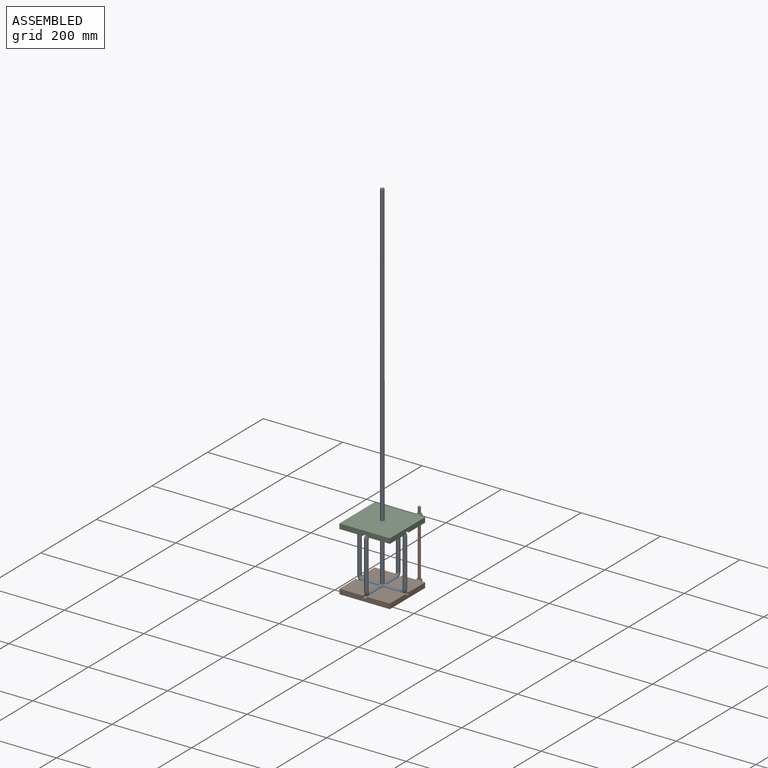
[diagram: assembled view]
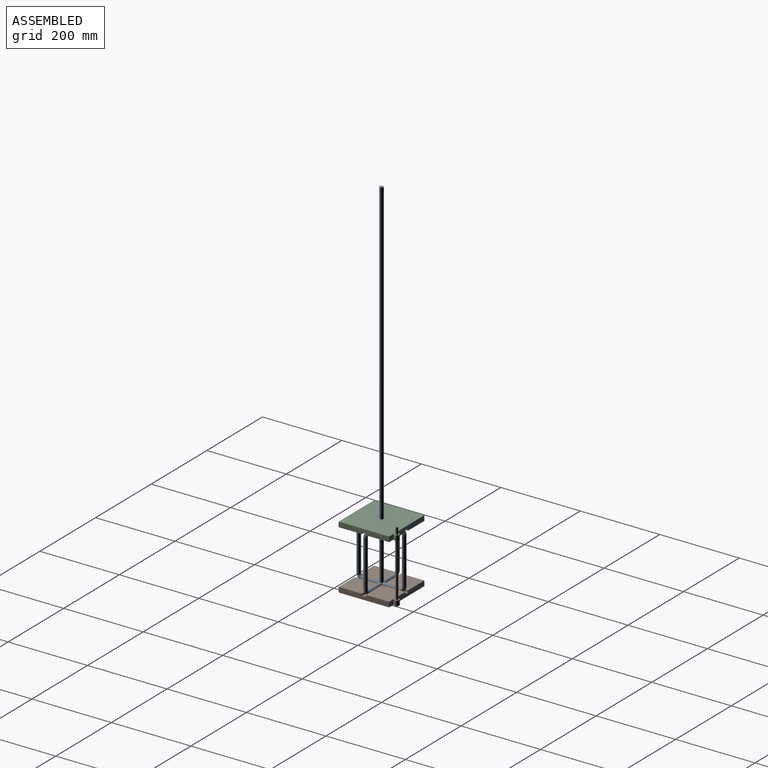
[diagram: assembled view, second angle]
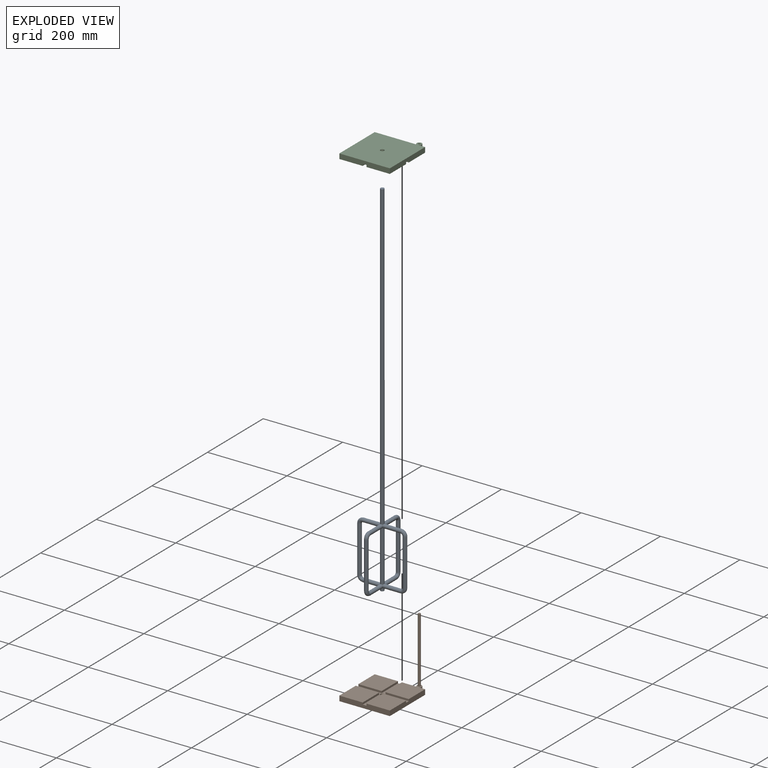
[diagram: exploded view]
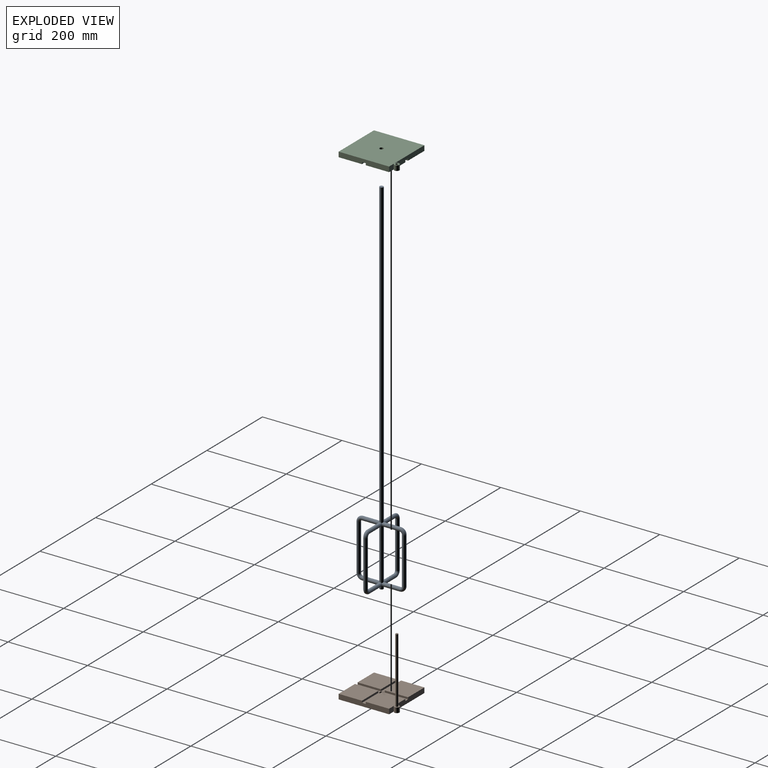
[diagram: exploded view, second angle]
ASSEMBLY  parts=3 mates=2
PART A: 25 faces, bbox 126.2x126.2x914.4 mm
  f0: cylinder r=4.76mm len=9.53mm, axis (0,0,-1), area 204.2mm2, adj f3,f6,f10,f19,f20
  f1: cylinder r=4.76mm len=763.4mm, axis (0,0,-1), area 22816mm2, adj f4,f5,f11,f15,f24
  f2: cylinder r=4.76mm len=129.79mm, axis (0,0,-1), area 3828.7mm2, adj f5,f6,f10,f11,f15,f19,f20,f24
  f3: plane 9.53x9.53mm, normal (0,0,1), area 71.3mm2, adj f0
  f4: plane 9.53x9.53mm, normal (0,0,-1), area 71.3mm2, adj f1
  f5: cylinder r=4.76mm len=44.26mm, axis (1,0,0), area 1296.8mm2, adj f1,f2,f7,f15,f24
  f6: cylinder r=4.76mm len=44.26mm, axis (-1,0,0), area 1296.8mm2, adj f0,f2,f9,f19,f20
  f7: torus R=9.53mm, axis (0,-1,0), area 447.7mm2, adj f5,f8
  f8: cylinder r=4.76mm len=117.48mm, axis (0,0,1), area 3515.3mm2, adj f7,f9
  f9: torus R=9.53mm, axis (0,-1,0), area 447.7mm2, adj f6,f8
  f10: cylinder r=4.76mm len=44.26mm, axis (-1,0,0), area 1296.8mm2, adj f0,f2,f12,f19,f20
  f11: cylinder r=4.76mm len=44.26mm, axis (1,0,0), area 1296.8mm2, adj f1,f2,f14,f15,f24
  f12: torus R=9.53mm, axis (0,-1,0), area 447.7mm2, adj f10,f13
  f13: cylinder r=4.76mm len=117.48mm, axis (0,0,-1), area 3515.3mm2, adj f12,f14
  f14: torus R=9.53mm, axis (0,-1,0), area 447.7mm2, adj f11,f13
  f15: cylinder r=4.76mm len=44.26mm, axis (0,-1,0), area 1296.8mm2, adj f1,f2,f5,f11,f16
  f16: torus R=9.53mm, axis (-1,0,0), area 447.7mm2, adj f15,f17
  f17: cylinder r=4.76mm len=117.48mm, axis (0,0,1), area 3515.3mm2, adj f16,f18
  f18: torus R=9.53mm, axis (-1,0,0), area 447.7mm2, adj f17,f19
  f19: cylinder r=4.76mm len=44.26mm, axis (0,1,0), area 1296.8mm2, adj f0,f2,f6,f10,f18
  f20: cylinder r=4.76mm len=44.26mm, axis (0,1,0), area 1296.8mm2, adj f0,f2,f6,f10,f21
  f21: torus R=9.53mm, axis (-1,0,0), area 447.7mm2, adj f20,f22
  f22: cylinder r=4.76mm len=117.48mm, axis (0,0,-1), area 3515.3mm2, adj f21,f23
  f23: torus R=9.53mm, axis (-1,0,0), area 447.7mm2, adj f22,f24
  f24: cylinder r=4.76mm len=44.26mm, axis (0,-1,0), area 1296.8mm2, adj f1,f2,f5,f11,f23
PART B: 26 faces, bbox 127x139.5x177.8 mm
  f0: plane 85.92x12.7mm, normal (0,1,0), area 1045.8mm2, adj f2,f3,f8,f10,f13,f14,f20,f23
  f1: plane 127x12.7mm, normal (-1,0,0), area 1567.5mm2, adj f3,f4,f5,f9,f10,f15,f16,f20
  f2: plane 71.26x58.74mm, normal (0,0,1), area 3544.7mm2, adj f0,f6,f7,f12,f13,f23,f24
  f3: plane 58.74x58.74mm, normal (0,0,1), area 3449.7mm2, adj f0,f1,f8,f9,f14,f15
  f4: plane 58.74x58.74mm, normal (0,0,1), area 3450.1mm2, adj f1,f5,f16,f17
  f5: plane 127x12.7mm, normal (0,-1,0), area 1567.5mm2, adj f1,f4,f6,f10,f11,f17,f18,f20
  f6: plane 127x12.7mm, normal (1,0,0), area 1567.5mm2, adj f2,f5,f7,f10,f11,f12,f19,f20
  f7: plane 17.56x12.7mm, normal (0,1,0), area 223mm2, adj f2,f6,f10,f23
  f8: cylinder r=6.35mm len=12.7mm, axis (0,0,1), area 38.3mm2, adj f0,f3,f9,f10
  f9: plane 17.56x12.7mm, normal (0,1,0), area 223mm2, adj f1,f3,f8,f10
  f10: plane 139.52x127mm, normal (0,0,-1), area 16255mm2, adj f0,f1,f5,f6,f7,f8,f9,f23
  f11: plane 58.74x58.74mm, normal (0,0,1), area 3450.1mm2, adj f5,f6,f18,f19
  f12: plane 58.74x4.76mm, normal (0,-1,0), area 279.7mm2, adj f2,f6,f13,f20
  f13: plane 58.74x4.76mm, normal (-1,0,0), area 279.7mm2, adj f0,f2,f12,f20
  f14: plane 58.74x4.76mm, normal (1,0,0), area 279.7mm2, adj f0,f3,f15,f20
  f15: plane 58.74x4.76mm, normal (0,-1,0), area 279.7mm2, adj f1,f3,f14,f20
  f16: plane 58.74x4.76mm, normal (0,1,0), area 279.7mm2, adj f1,f4,f17,f20
  f17: plane 58.74x4.76mm, normal (1,0,0), area 279.7mm2, adj f4,f5,f16,f20
  f18: plane 58.74x4.76mm, normal (-1,0,0), area 279.7mm2, adj f5,f11,f19,f20
  f19: plane 58.74x4.76mm, normal (0,1,0), area 279.7mm2, adj f6,f11,f18,f20
  f20: plane 127x127mm, normal (0,0,1), area 2257.4mm2, adj f0,f1,f5,f6,f12,f13,f14,f15
  f21: plane 9.53x9.53mm, normal (0,0,1), area 71.3mm2, adj f22
  f22: cylinder r=4.76mm len=9.53mm, axis (0,0,1), area 190mm2, adj f20,f21
  f23: cylinder r=6.35mm len=12.7mm, axis (0,0,1), area 468.4mm2, adj f0,f2,f7,f10
  f24: cylinder r=3.17mm len=165.1mm, axis (0,0,-1), area 3293.6mm2, adj f2,f25
  f25: plane 6.35x6.35mm, normal (0,0,1), area 31.7mm2, adj f24
PART C: 24 faces, bbox 127x139.5x12.7 mm
  f0: plane 127x12.7mm, normal (0,-1,0), area 1567.5mm2, adj f1,f2,f5,f12,f13,f15,f22,f23
  f1: plane 127x12.7mm, normal (1,0,0), area 1567.5mm2, adj f0,f3,f6,f12,f13,f16,f17,f23
  f2: plane 58.74x58.74mm, normal (0,0,-1), area 3450.1mm2, adj f0,f5,f21,f22
  f3: plane 71.26x58.74mm, normal (0,0,-1), area 3544.7mm2, adj f1,f6,f7,f8,f11,f17,f18
  f4: plane 58.74x58.74mm, normal (0,0,-1), area 3449.7mm2, adj f5,f8,f9,f10,f19,f20
  f5: plane 127x12.7mm, normal (-1,0,0), area 1567.5mm2, adj f0,f2,f4,f10,f12,f20,f21,f23
  f6: plane 17.56x12.7mm, normal (0,1,0), area 223mm2, adj f1,f3,f7,f12
  f7: cylinder r=6.35mm len=12.7mm, axis (0,0,-1), area 468.4mm2, adj f3,f6,f8,f12
  f8: plane 85.92x12.7mm, normal (0,1,0), area 1045.8mm2, adj f3,f4,f7,f9,f12,f18,f19,f23
  f9: cylinder r=6.35mm len=12.7mm, axis (0,0,-1), area 38.3mm2, adj f4,f8,f10,f12
  f10: plane 17.56x12.7mm, normal (0,1,0), area 223mm2, adj f4,f5,f9,f12
  f11: cylinder r=3.17mm len=12.7mm, axis (0,0,-1), area 253.4mm2, adj f3,f12
  f12: plane 139.52x127mm, normal (0,0,1), area 16152mm2, adj f0,f1,f5,f6,f7,f8,f9,f10
  f13: plane 58.74x58.74mm, normal (0,0,-1), area 3450.1mm2, adj f0,f1,f15,f16
  f14: cylinder r=4.76mm len=9.53mm, axis (0,0,-1), area 237.5mm2, adj f12,f23
  f15: plane 58.74x4.76mm, normal (-1,0,0), area 279.7mm2, adj f0,f13,f16,f23
  f16: plane 58.74x4.76mm, normal (0,1,0), area 279.7mm2, adj f1,f13,f15,f23
  f17: plane 58.74x4.76mm, normal (0,-1,0), area 279.7mm2, adj f1,f3,f18,f23
  f18: plane 58.74x4.76mm, normal (-1,0,0), area 279.7mm2, adj f3,f8,f17,f23
  f19: plane 58.74x4.76mm, normal (1,0,0), area 279.7mm2, adj f4,f8,f20,f23
  f20: plane 58.74x4.76mm, normal (0,-1,0), area 279.7mm2, adj f4,f5,f19,f23
  f21: plane 58.74x4.76mm, normal (0,1,0), area 279.7mm2, adj f2,f5,f22,f23
  f22: plane 58.74x4.76mm, normal (1,0,0), area 279.7mm2, adj f0,f2,f21,f23
  f23: plane 127x127mm, normal (0,0,-1), area 2257.4mm2, adj f0,f1,f5,f8,f14,f15,f16,f17
PLACE A rot(axis=(1,0,0),180deg) t=(0,0,446.09)mm
PLACE B at identity fixed
PLACE C t=(0,0,-0.75)mm
MATE slider B.f23 <-> C.f7  axis (0,0,-1) through (44.45,69.67,165.1)mm
MATE fastened A.f0 <-> B.f22  axis (0,0,-1) through (0,0,-11.11)mm
